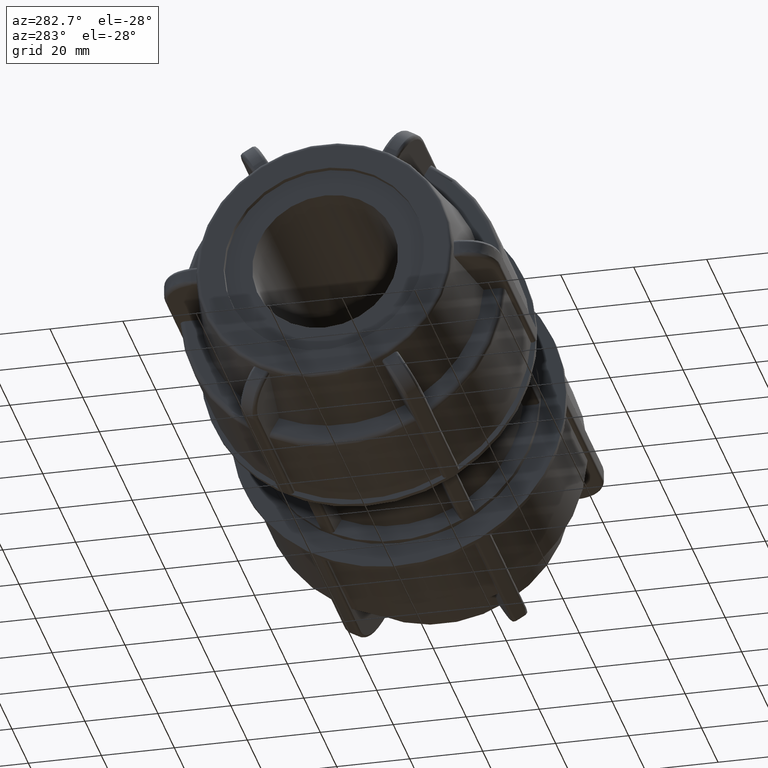
[diagram: clean part render]
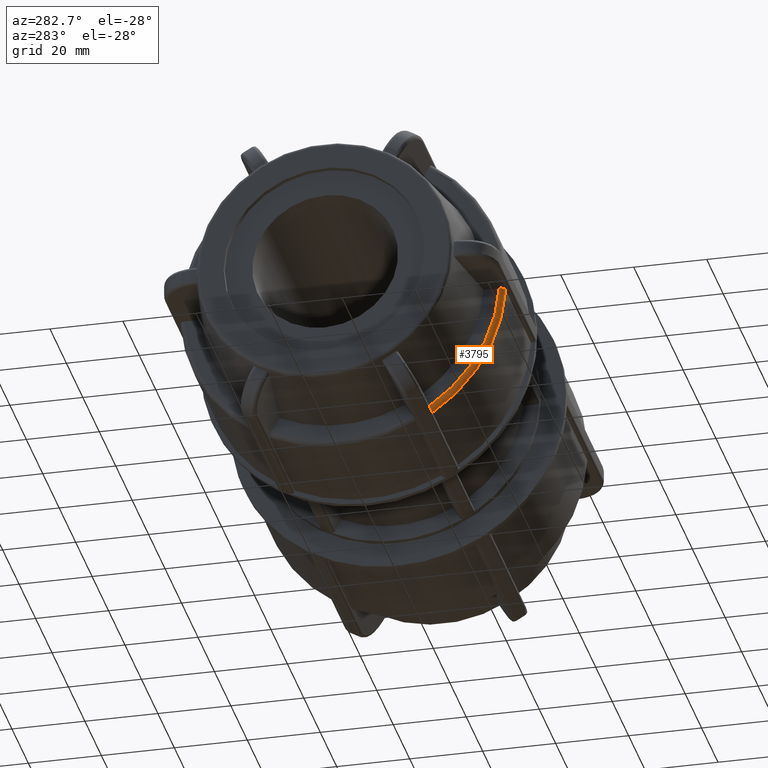
[diagram: same view with one face highlighted and labeled with its STEP entity id]
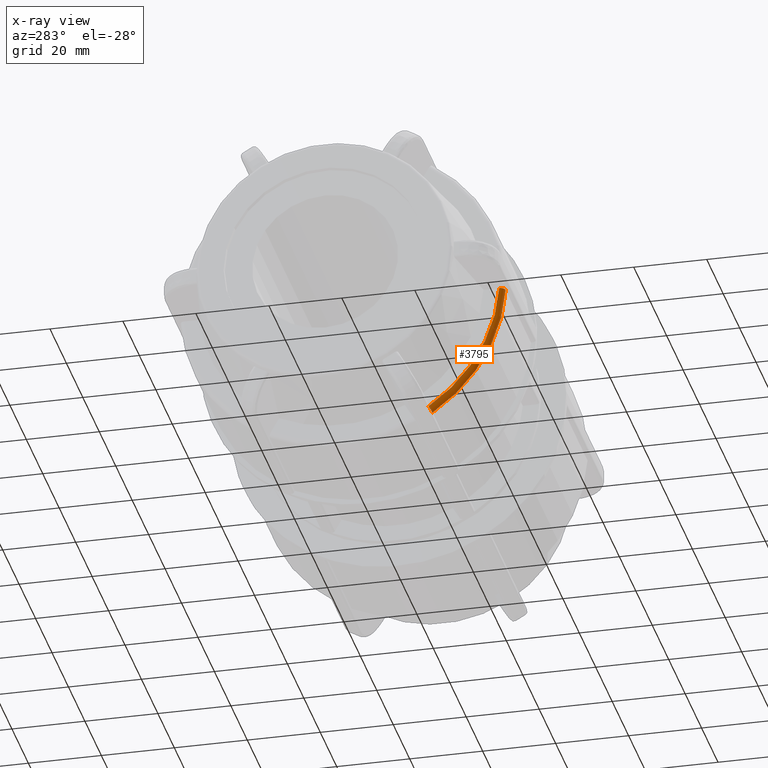
[diagram: x-ray of the same camera — body ghosted, the highlighted face saturated]
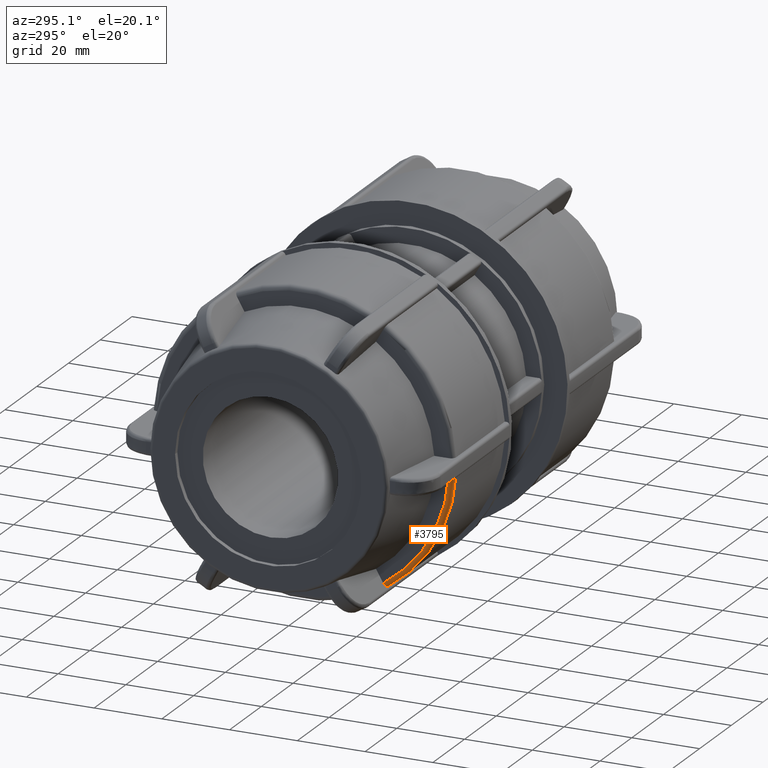
[diagram: same view with one face highlighted and labeled with its STEP entity id]
A machine part, auxiliary view. The second image highlights one B-rep face of the part: STEP entity #3795.
The next image is the same camera in x-ray: the body ghosted, the highlighted face saturated — about 0% of this face is hidden behind the body in this view.
A second angle (auxiliary view) of the same face is appended — the face is thin or edge-on in the first view.
In plain terms, the highlighted toroidal blend (fillet) surface has major radius 43.16 mm and minor (blend) radius 1.46 mm.
Its self-contained STEP definition (entity closure, byte-faithful):
#25=TOROIDAL_SURFACE('',#4140,43.16,1.46);
#77=B_SPLINE_CURVE_WITH_KNOTS('',3,(#5999,#6000,#6001,#6002,#6003,#6004,
#6005,#6006,#6007,#6008),.UNSPECIFIED.,.F.,.F.,(4,2,2,2,4),(-0.216397312035066,
-0.162223664148742,-0.108098313662019,-0.0540274345760959,0.),
 .UNSPECIFIED.);
#105=B_SPLINE_CURVE_WITH_KNOTS('',3,(#6640,#6641,#6642,#6643,#6644,#6645,
#6646,#6647,#6648,#6649),.UNSPECIFIED.,.F.,.F.,(4,2,2,2,4),(0.,0.0540496429121166,
0.108142777318255,0.162245921041737,0.21639731289007),.UNSPECIFIED.);
#409=FACE_OUTER_BOUND('',#651,.T.);
#651=EDGE_LOOP('',(#2952,#2953,#2954,#2955));
#1361=CIRCLE('',#4126,43.16);
#1370=CIRCLE('',#4141,44.62);
#1609=VERTEX_POINT('',#5996);
#1610=VERTEX_POINT('',#5998);
#1679=VERTEX_POINT('',#6637);
#1680=VERTEX_POINT('',#6639);
#2035=EDGE_CURVE('',#1610,#1609,#77,.T.);
#2141=EDGE_CURVE('',#1680,#1679,#105,.T.);
#2156=EDGE_CURVE('',#1679,#1610,#1361,.T.);
#2167=EDGE_CURVE('',#1609,#1680,#1370,.T.);
#2952=ORIENTED_EDGE('',*,*,#2035,.T.);
#2953=ORIENTED_EDGE('',*,*,#2167,.T.);
#2954=ORIENTED_EDGE('',*,*,#2141,.T.);
#2955=ORIENTED_EDGE('',*,*,#2156,.T.);
#3795=ADVANCED_FACE('',(#409),#25,.T.);
#4126=AXIS2_PLACEMENT_3D('',#6687,#4904,#4905);
#4140=AXIS2_PLACEMENT_3D('',#6715,#4933,#4934);
#4141=AXIS2_PLACEMENT_3D('',#6716,#4935,#4936);
#4904=DIRECTION('center_axis',(1.,3.06161699786838E-16,0.));
#4905=DIRECTION('ref_axis',(3.06161699786838E-16,-1.,1.83697019872103E-16));
#4933=DIRECTION('center_axis',(1.,3.06161699786838E-16,0.));
#4934=DIRECTION('ref_axis',(0.,0.,-1.));
#4935=DIRECTION('center_axis',(-1.,-3.06161699786838E-16,0.));
#4936=DIRECTION('ref_axis',(3.04801256200318E-16,-1.,1.83697019872103E-16));
#5996=CARTESIAN_POINT('',(-49.64,-24.4400180548693,-37.3313530089342));
#5998=CARTESIAN_POINT('',(-51.1,-23.708830589524,-36.0648991690986));
#5999=CARTESIAN_POINT('Ctrl Pts',(-51.1,-23.708830589524,-36.0648991690986));
#6000=CARTESIAN_POINT('Ctrl Pts',(-51.1,-23.7991200026679,-36.2212850200494));
#6001=CARTESIAN_POINT('Ctrl Pts',(-51.0577761184351,-23.905390518135,-36.405350952185));
#6002=CARTESIAN_POINT('Ctrl Pts',(-50.9197401615621,-24.0721723097364,-36.6942254890159));
#6003=CARTESIAN_POINT('Ctrl Pts',(-50.7995595234617,-24.162213232753,-36.8501809424411));
#6004=CARTESIAN_POINT('Ctrl Pts',(-50.5446615656108,-24.2897851829446,-37.0711420417936));
#6005=CARTESIAN_POINT('Ctrl Pts',(-50.3648942520846,-24.3499147772172,-37.1752895541123));
#6006=CARTESIAN_POINT('Ctrl Pts',(-50.0320394097568,-24.4189142593223,-37.2948001628143));
#6007=CARTESIAN_POINT('Ctrl Pts',(-49.820091448587,-24.4400180548693,-37.3313530089342));
#6008=CARTESIAN_POINT('Ctrl Pts',(-49.64,-24.4400180548693,-37.3313530089342));
#6637=CARTESIAN_POINT('',(-51.1,-43.0875341601257,-2.49999999999999));
#6639=CARTESIAN_POINT('',(-49.64,-44.5499090908164,-2.49999999999999));
#6640=CARTESIAN_POINT('Ctrl Pts',(-49.64,-44.5499090908164,-2.49999999999999));
#6641=CARTESIAN_POINT('Ctrl Pts',(-49.8201654763737,-44.5499090908164,-2.49999999999999));
#6642=CARTESIAN_POINT('Ctrl Pts',(-50.0321971855793,-44.5076672078778,-2.49999999999999));
#6643=CARTESIAN_POINT('Ctrl Pts',(-50.3651668925279,-44.3695583148896,-2.49999999999999));
#6644=CARTESIAN_POINT('Ctrl Pts',(-50.5449793717669,-44.2492065498505,-2.49999999999999));
#6645=CARTESIAN_POINT('Ctrl Pts',(-50.799796002572,-43.9939811979888,-2.49999999999999));
#6646=CARTESIAN_POINT('Ctrl Pts',(-50.9198842773892,-43.8139445105508,-2.49999999999999));
#6647=CARTESIAN_POINT('Ctrl Pts',(-51.05781038838,-43.4804958741014,-2.49999999999999));
#6648=CARTESIAN_POINT('Ctrl Pts',(-51.1,-43.2680387996202,-2.49999999999999));
#6649=CARTESIAN_POINT('Ctrl Pts',(-51.1,-43.0875341601257,-2.49999999999999));
#6687=CARTESIAN_POINT('Origin',(-51.1,-1.56448628591074E-14,0.));
#6715=CARTESIAN_POINT('Origin',(-49.64,-1.51978667774187E-14,0.));
#6716=CARTESIAN_POINT('Origin',(-49.64,-1.51978667774187E-14,0.));